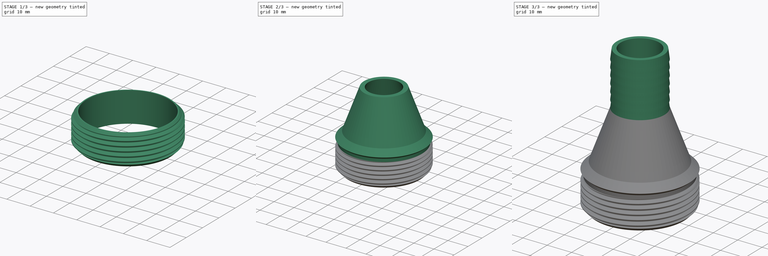
[diagram: build sequence overview — one tinted view per stage of 3, left to right]
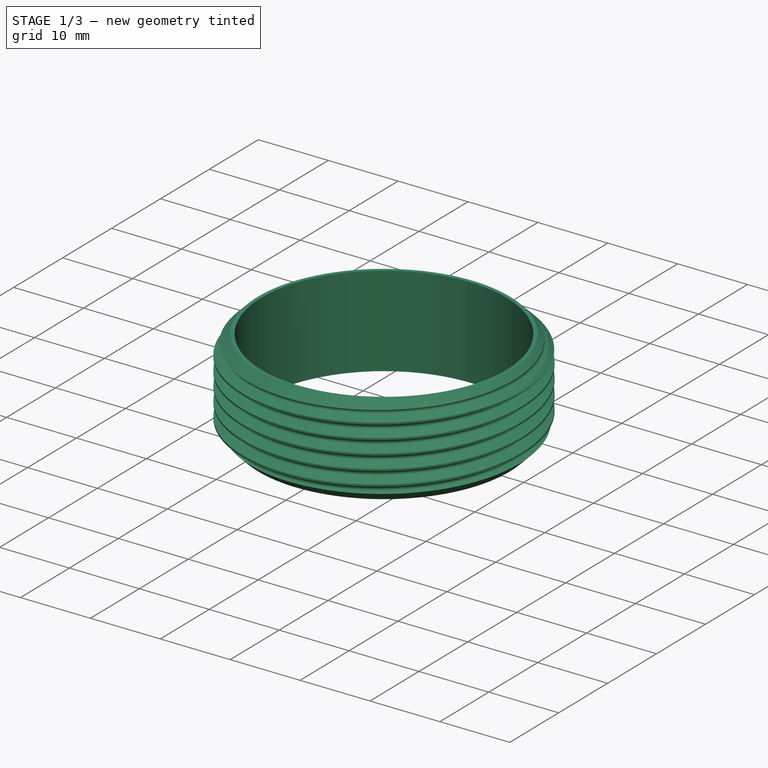
[diagram: stage 1 of 3 — iso view after this stage's code; geometry added in this stage tinted green]
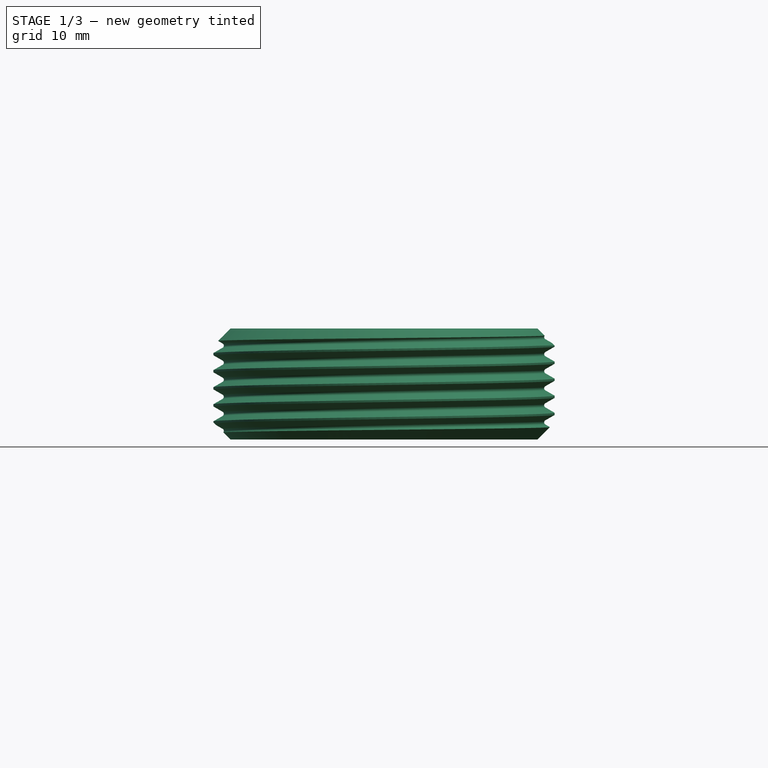
[diagram: stage 1 of 3 — front view after this stage's code; geometry added in this stage tinted green]
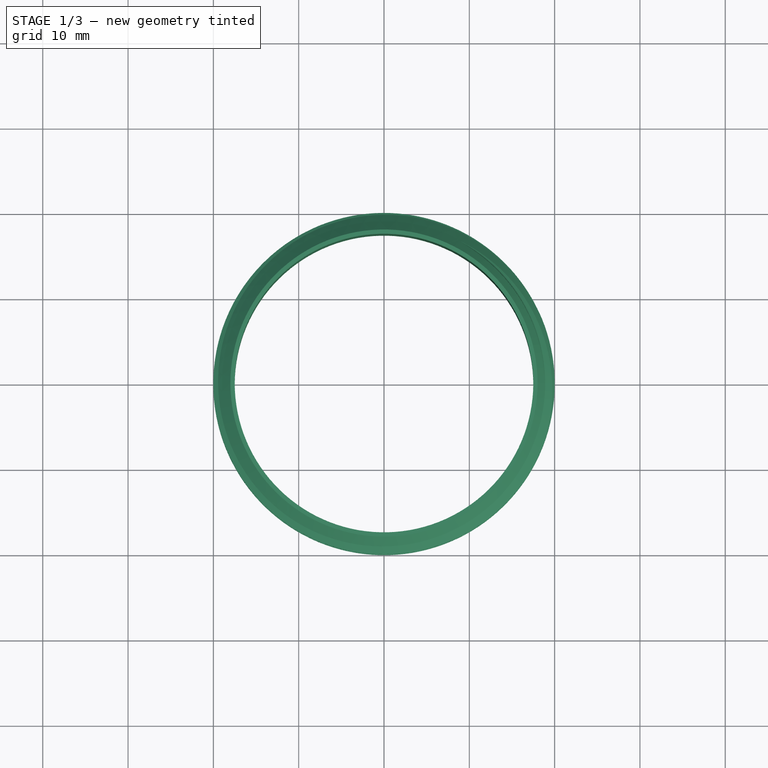
[diagram: stage 1 of 3 — top view after this stage's code; geometry added in this stage tinted green]
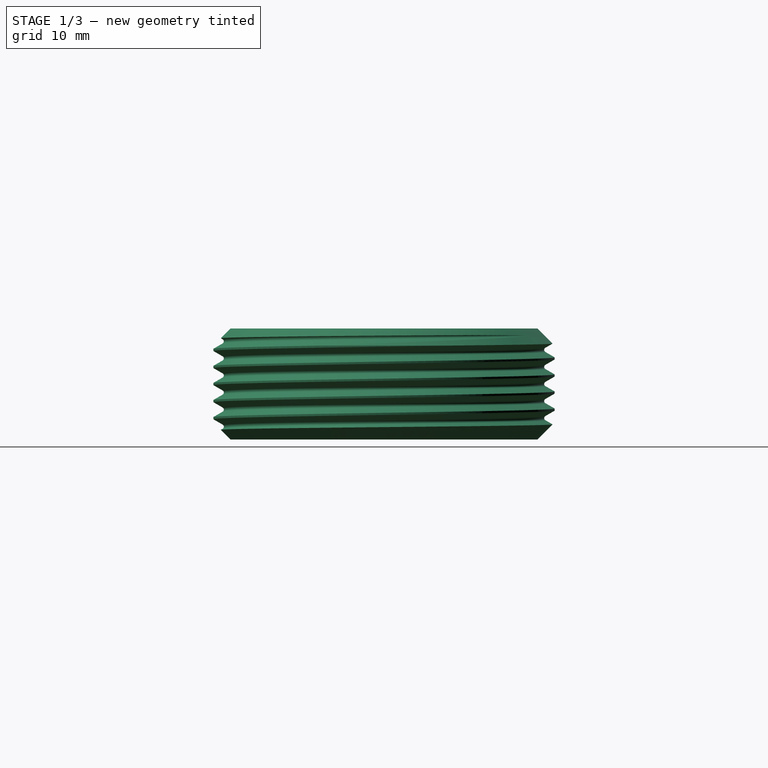
[diagram: stage 1 of 3 — right view after this stage's code; geometry added in this stage tinted green]
FCSTD DOCUMENT  (FreeCAD 1.0R39285 (Git))
Label: Переходник для насоса
License: All rights reserved
LicenseURL: https://en.wikipedia.org/wiki/All_rights_reserved
objects: Sketcher::SketchObject×3, PartDesign::Revolution×3, Part::FeaturePython×1, PartDesign::LinearPattern×1, PartDesign::Body×1, Part::Cylinder×1, Part::Cut×1, Part::MultiFuse×1
note: 22 computed .brp shape members not serialized (recipe doc carries the construction recipe); baked Part::Feature solids carry a one-line shape summary decoded from their .brp

FEATURE [Part::FeaturePython] ThreadedRod  label="40x13-Шпилька"  # WARN: FeaturePython — macro-defined, semantics opaque (R4)
  Diameter = 29
  DiameterCustom = 40
  Invert = false
  LeftHanded = false
  Length = 13
  MatchOuter = false
  OffsetAngle = 0
  PitchCustom = 2
  Thread = true
  Type = 4
FEATURE [PartDesign::Body] Body  label="Тело"
  AllowCompound = false
  Group = -> [Sketch,Revolution,Sketch001,Revolution001,Sketch002,Revolution002,LinearPattern]
  Origin = -> Origin
  Tip = -> LinearPattern
FEATURE [Part::Cylinder] Cylinder  label="Цилиндр"
  Angle = 360
  AttacherType = Attacher::AttachEngine3D
  FirstAngle = 0
  Height = 50
  Placement = pos=(0,0,-26) rot=(0,0,1;0rad)
  Radius = 17.5
  SecondAngle = 0
FEATURE [Part::Cut] Cut
  Base = -> ThreadedRod
  Refine = true
  Tool = -> Cylinder
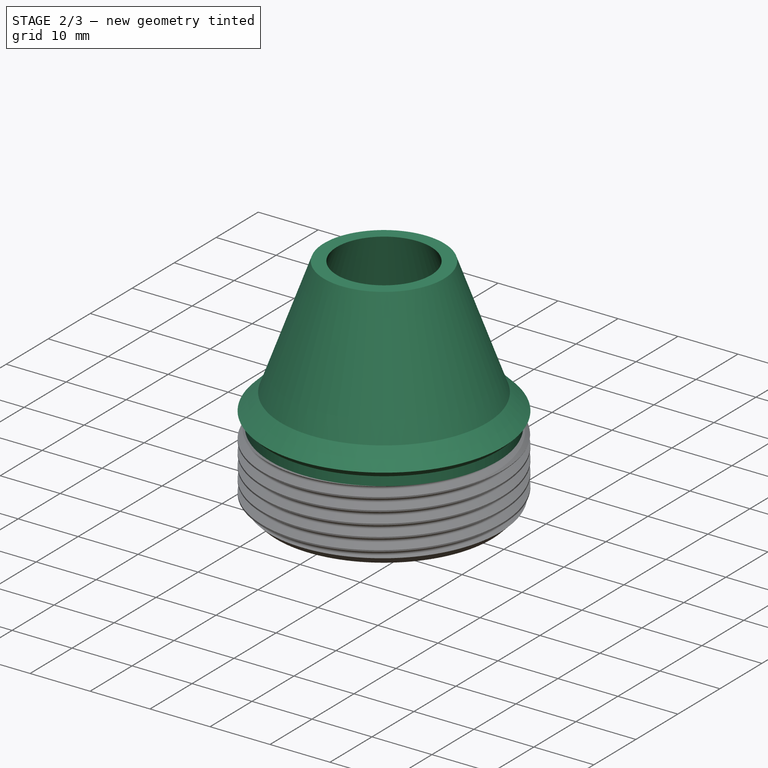
[diagram: stage 2 of 3 — iso view after this stage's code; geometry added in this stage tinted green]
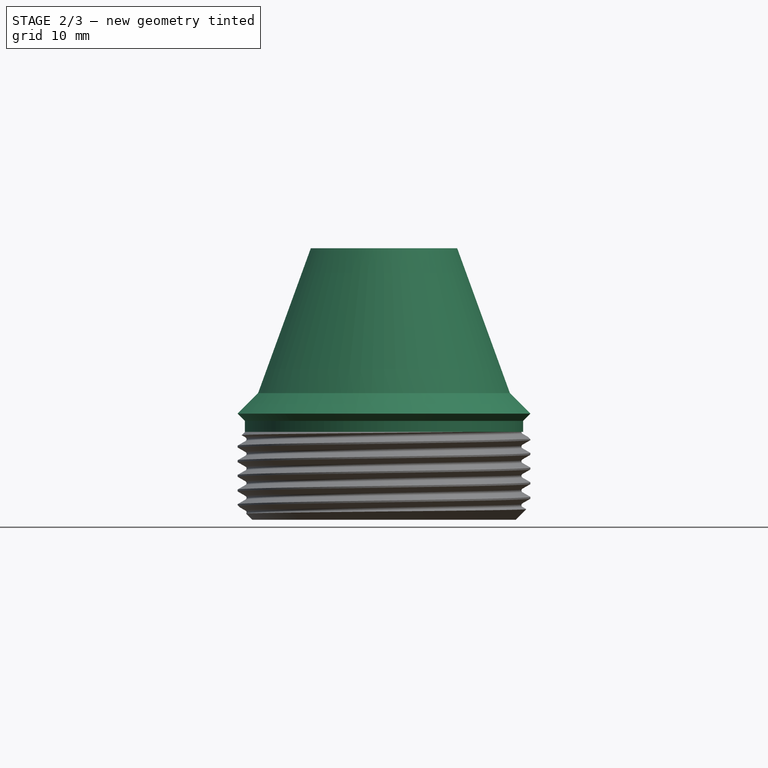
[diagram: stage 2 of 3 — front view after this stage's code; geometry added in this stage tinted green]
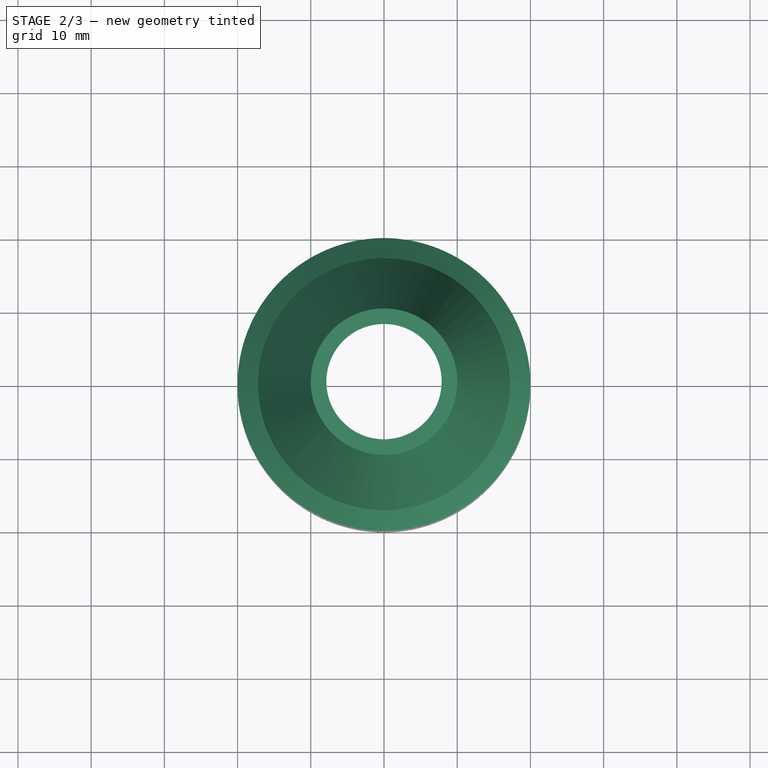
[diagram: stage 2 of 3 — top view after this stage's code; geometry added in this stage tinted green]
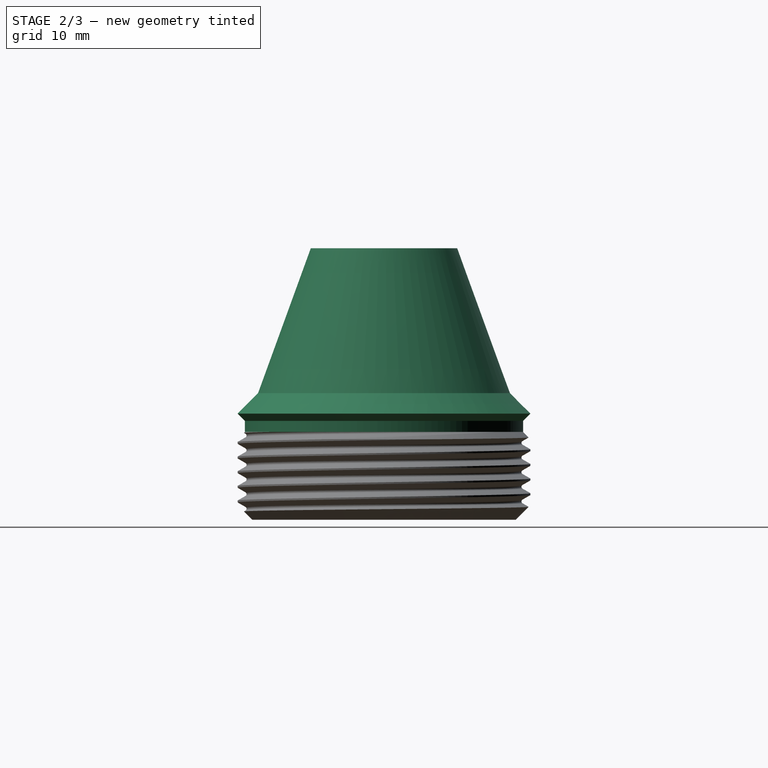
[diagram: stage 2 of 3 — right view after this stage's code; geometry added in this stage tinted green]
FEATURE [Sketcher::SketchObject] Sketch
  ArcFitTolerance = 1e-06
  AttachmentSupport = -> [XZ_Plane]
  FullyConstrained = true
  MakeInternals = false
  MapMode = 5
  Placement = pos=(0,0,0) rot=(1,0,0;1.5708rad)
  sketch-geometry (13):
    g0: LineSegment [constr] StartX=0 StartY=0 StartZ=0 EndX=0 EndY=-2 EndZ=0
    g1: LineSegment [constr] StartX=0 StartY=-2 StartZ=0 EndX=20 EndY=-2 EndZ=0
    g2: LineSegment [constr] StartX=20 StartY=-2 StartZ=0 EndX=18 EndY=0 EndZ=0
    g3: LineSegment [constr] StartX=18 StartY=0 StartZ=0 EndX=0 EndY=0 EndZ=0
    g4: LineSegment StartX=19 StartY=0.5 StartZ=0 EndX=19 EndY=-1 EndZ=0
    g5: LineSegment [constr] StartX=19 StartY=-1 StartZ=0 EndX=0 EndY=-1 EndZ=0
    g6: LineSegment [constr] StartX=0 StartY=-1 StartZ=0 EndX=0 EndY=0 EndZ=0
    g7: LineSegment StartX=19 StartY=0.5 StartZ=0 EndX=20 EndY=1.5 EndZ=0
    g8: LineSegment [constr] StartX=20 StartY=1.5 StartZ=0 EndX=0 EndY=1.5 EndZ=0
    g9: LineSegment [constr] StartX=0 StartY=1.5 StartZ=0 EndX=0 EndY=0 EndZ=0
    g10: LineSegment StartX=17 StartY=1.5 StartZ=0 EndX=17 EndY=-1 EndZ=0
    g11: LineSegment StartX=19 StartY=-1 StartZ=0 EndX=17 EndY=-1 EndZ=0
    g12: LineSegment StartX=20 StartY=1.5 StartZ=0 EndX=17 EndY=1.5 EndZ=0
  constraints (35):
    c: Coincident(g-1,g0)
    c: Coincident(g0,g1)
    c: Horizontal(g1)
    c: Coincident(g1,g2)
    c: Coincident(g2,g3)
    c: Coincident(g3,g0)
    c: DistanceY(g0,g0) = 2
    c: Angle(g2,g1) = 0.785398
    c: DistanceX(g1,g1) = 20
    c: PointOnObject(g4,g2)
    c: Coincident(g4,g5)
    c: Symmetric(g0,g0,g5)
    c: Horizontal(g5)
    c: Coincident(g5,g6)
    c: Coincident(g6,g0)
    c: Vertical(g4)
    c: Coincident(g4,g7)
    c: Coincident(g7,g8)
    c: Horizontal(g8)
    c: Coincident(g8,g9)
    c: Coincident(g9,g0)
    c: Vertical(g9)
    c: Vertical(g1,g7)
    c: DistanceY(g1,g7) = 3.5
    c: Angle(g4,g7) = 2.35619
    c: Horizontal(g3)
    c: Vertical(g0)
    c: PointOnObject(g10,g8)
    c: PointOnObject(g10,g5)
    c: Vertical(g10)
    c: Coincident(g4,g11)
    c: Coincident(g11,g10)
    c: Coincident(g7,g12)
    c: Coincident(g12,g10)
    c: DistanceX(g-1,g10) = 17
FEATURE [PartDesign::Revolution] Revolution
  Angle = 360
  Angle2 = 60
  Axis = (0,2e-16,1)
  Base = (0,0,0)
  Placement = pos=(0,0,0) rot=(1,0,0;1.5708rad)
  Profile = -> Sketch
  ReferenceAxis = -> Sketch [V_Axis]
  Refine = true
  Reversed = true
  Suppressed = false
  Type = 0
FEATURE [Sketcher::SketchObject] Sketch001
  ArcFitTolerance = 1e-06
  AttachmentSupport = -> [YZ_Plane]
  ExternalGeometry = -> [Revolution]
  FullyConstrained = true
  MakeInternals = false
  MapMode = 5
  Placement = pos=(0,0,0) rot=(0.57735,0.57735,0.57735;2.0944rad)
  sketch-geometry (10):
    g0: LineSegment [constr] StartX=0 StartY=-1 StartZ=0 EndX=-19 EndY=-1 EndZ=0
    g1: LineSegment [constr] StartX=-10 StartY=24.08 StartZ=0 EndX=0 EndY=24.08 EndZ=0
    g2: LineSegment [constr] StartX=0 StartY=24.08 StartZ=0 EndX=0 EndY=-1 EndZ=0
    g3: LineSegment StartX=-19 StartY=-1 StartZ=0 EndX=-17 EndY=-1 EndZ=0
    g4: LineSegment StartX=-17 StartY=-1 StartZ=0 EndX=-7.87164 EndY=24.08 EndZ=0
    g5: LineSegment StartX=-7.87164 StartY=24.08 StartZ=0 EndX=-10 EndY=24.08 EndZ=0
    g6: LineSegment StartX=-20 StartY=1.5 StartZ=0 EndX=-17.1989 EndY=4.30108 EndZ=0
    g7: LineSegment StartX=-20 StartY=1.5 StartZ=0 EndX=-19 EndY=0.5 EndZ=0
    g8: LineSegment StartX=-19 StartY=0.5 StartZ=0 EndX=-19 EndY=-1 EndZ=0
    g9: LineSegment StartX=-17.1989 StartY=4.30108 StartZ=0 EndX=-10 EndY=24.08 EndZ=0
  constraints (28):
    c: PointOnObject(g0,g-2)
    c: Coincident(g0,g-3)
    c: Horizontal(g0)
    c: DistanceX(g9,g0) = 10
    c: Coincident(g9,g1)
    c: PointOnObject(g1,g-2)
    c: Horizontal(g1)
    c: Coincident(g1,g2)
    c: Coincident(g2,g0)
    c: Coincident(g0,g3)
    c: Coincident(g3,g4)
    c: Coincident(g5,g4)
    c: Coincident(g5,g9)
    c: PointOnObject(g4,g1)
    c: PointOnObject(g3,g0)
    c: Coincident(g6,g-4)
    c: PointOnObject(g6,g9)
    c: Angle(g-4,g6) = 0.785398
    c: Coincident(g7,g6)
    c: Coincident(g8,g7)
    c: Coincident(g8,g0)
    c: Vertical(g8)
    c: Angle(g7,g6) = 1.5708
    c: PointOnObject(g9,g6)
    c: Parallel(g4,g9)
    c: Angle(g0,g4) = 1.22173
    c: Distance(g9,g4) = 2
    c: DistanceX(g3,g-1) = 17
FEATURE [PartDesign::Revolution] Revolution001
  Angle = 360
  Angle2 = 60
  Axis = (0,0,1)
  Base = (0,0,0)
  BaseFeature = -> Revolution
  Placement = pos=(0,0,0) rot=(1,0,0;1.5708rad)
  Profile = -> Sketch001
  ReferenceAxis = -> Sketch001 [V_Axis]
  Refine = true
  Suppressed = false
  Type = 0
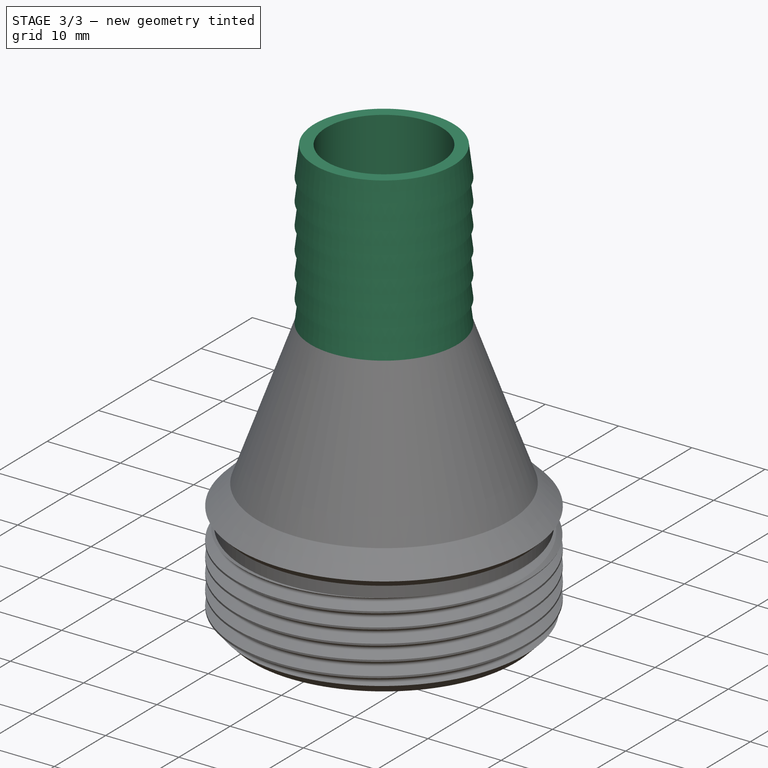
[diagram: stage 3 of 3 — iso view after this stage's code; geometry added in this stage tinted green]
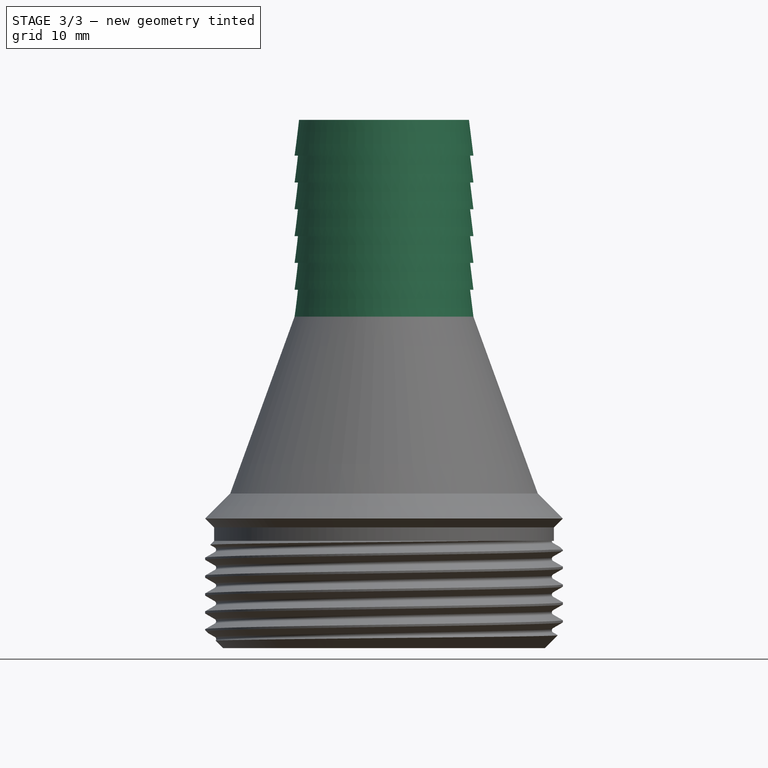
[diagram: stage 3 of 3 — front view after this stage's code; geometry added in this stage tinted green]
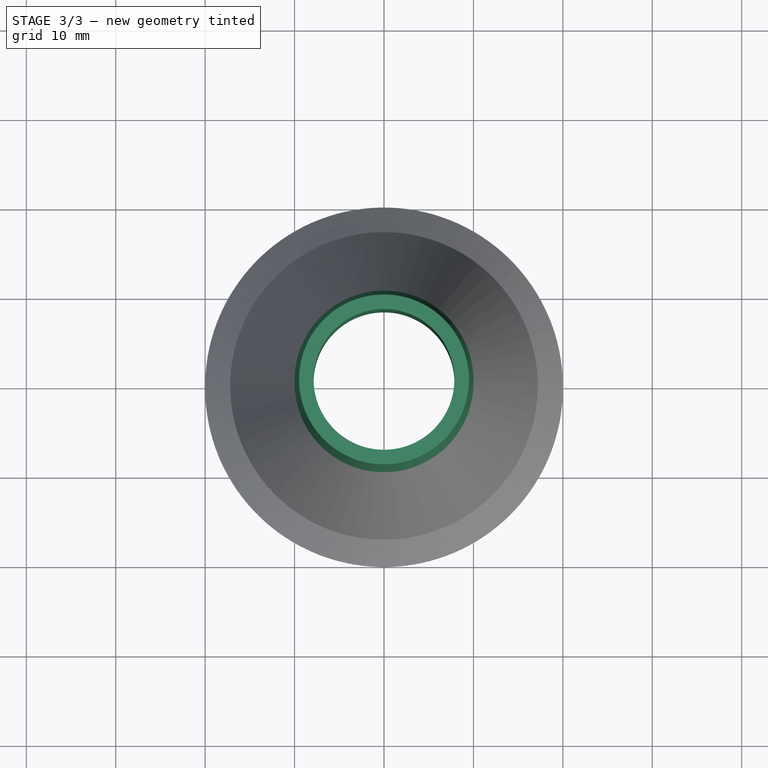
[diagram: stage 3 of 3 — top view after this stage's code; geometry added in this stage tinted green]
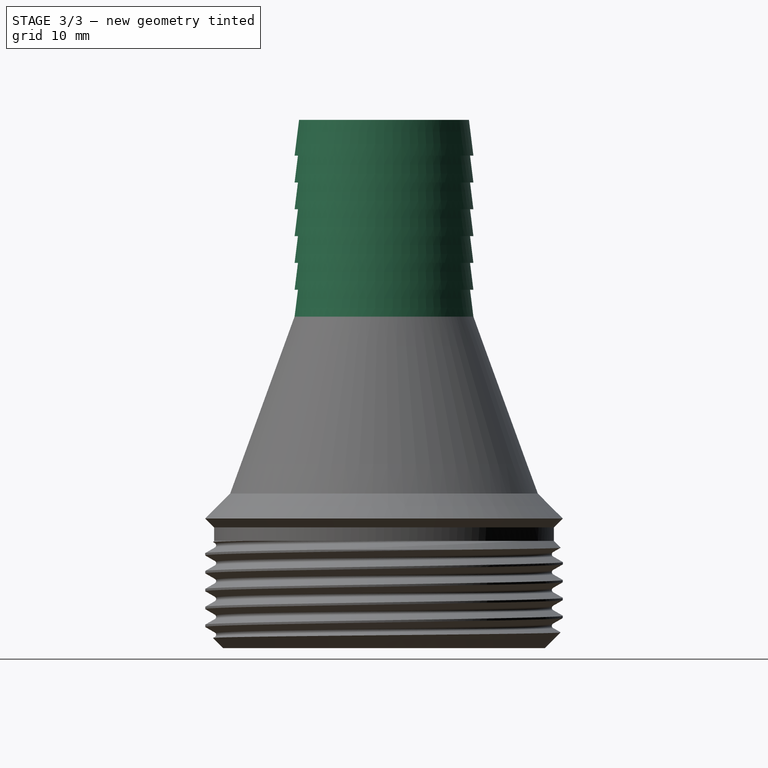
[diagram: stage 3 of 3 — right view after this stage's code; geometry added in this stage tinted green]
FEATURE [Sketcher::SketchObject] Sketch002
  ArcFitTolerance = 1e-06
  AttachmentSupport = -> [XZ_Plane]
  ExternalGeometry = -> [Revolution001]
  FullyConstrained = true
  MakeInternals = false
  MapMode = 5
  Placement = pos=(0,0,0) rot=(1,0,0;1.5708rad)
  sketch-geometry (4):
    g0: LineSegment StartX=7.87164 StartY=24.08 StartZ=0 EndX=7.87164 EndY=28.08 EndZ=0
    g1: LineSegment StartX=7.87164 StartY=28.08 StartZ=0 EndX=9.5 EndY=28.08 EndZ=0
    g2: LineSegment StartX=9.5 StartY=28.08 StartZ=0 EndX=10 EndY=24.08 EndZ=0
    g3: LineSegment StartX=10 StartY=24.08 StartZ=0 EndX=7.87164 EndY=24.08 EndZ=0
  constraints (10):
    c: Coincident(g-3,g0)
    c: Vertical(g0)
    c: Coincident(g0,g1)
    c: Coincident(g1,g2)
    c: Coincident(g2,g-4)
    c: Horizontal(g1)
    c: DistanceX(g-1,g1) = 9.5
    c: DistanceY(g2,g2) = 4
    c: Coincident(g3,g2)
    c: Coincident(g3,g0)
FEATURE [PartDesign::Revolution] Revolution002
  Angle = 360
  Angle2 = 60
  Axis = (0,2e-16,1)
  Base = (0,0,0)
  BaseFeature = -> Revolution001
  Placement = pos=(0,0,0) rot=(1,0,0;1.5708rad)
  Profile = -> Sketch002
  ReferenceAxis = -> Sketch002 [V_Axis]
  Refine = true
  Reversed = true
  Suppressed = false
  Type = 0
FEATURE [PartDesign::LinearPattern] LinearPattern
  BaseFeature = -> Revolution002
  Direction = -> Z_Axis
  Length = 18
  Mode = 1
  Occurrences = 7
  Offset = 3
  Originals = -> [Revolution002]
  Placement = pos=(0,0,0) rot=(1,0,0;1.5708rad)
  Refine = true
  Suppressed = false
  TransformMode = 0
FEATURE [Part::MultiFuse] Fusion
  Refine = true
  Shapes = -> [Body,Cut]
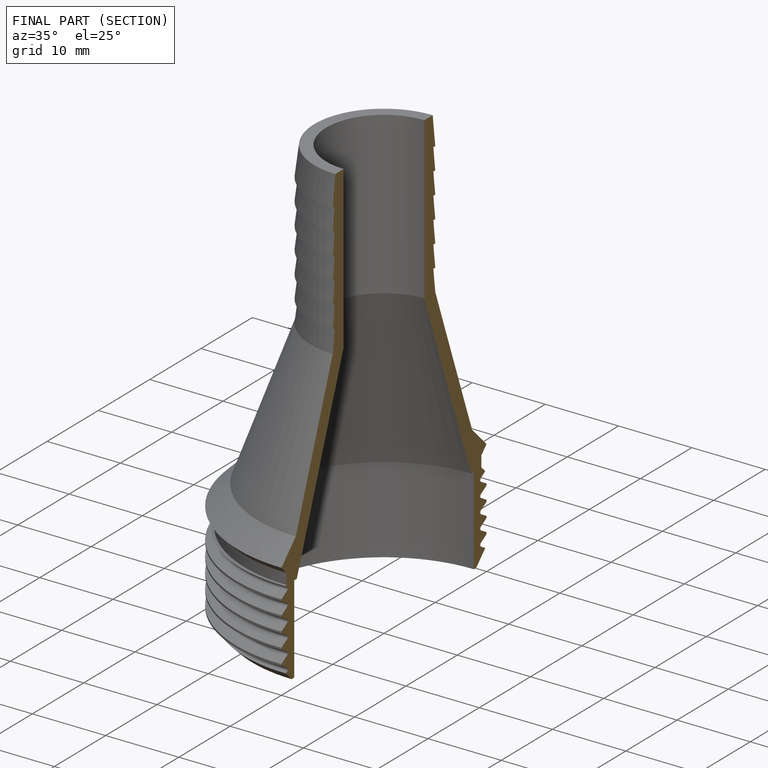
[diagram: finished part — half-section view (interior)]
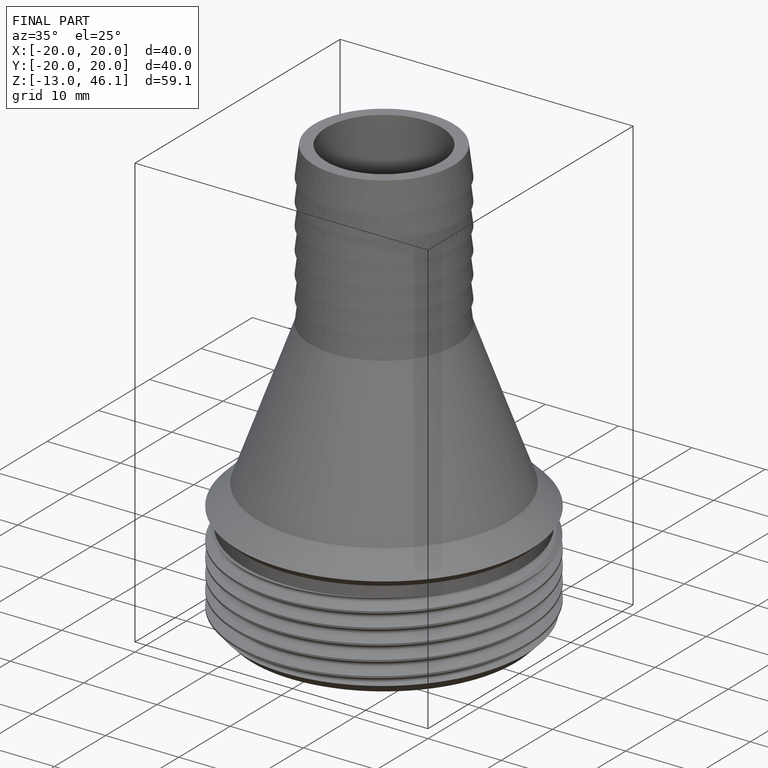
[diagram: finished part — iso view with bounding-box wireframe]
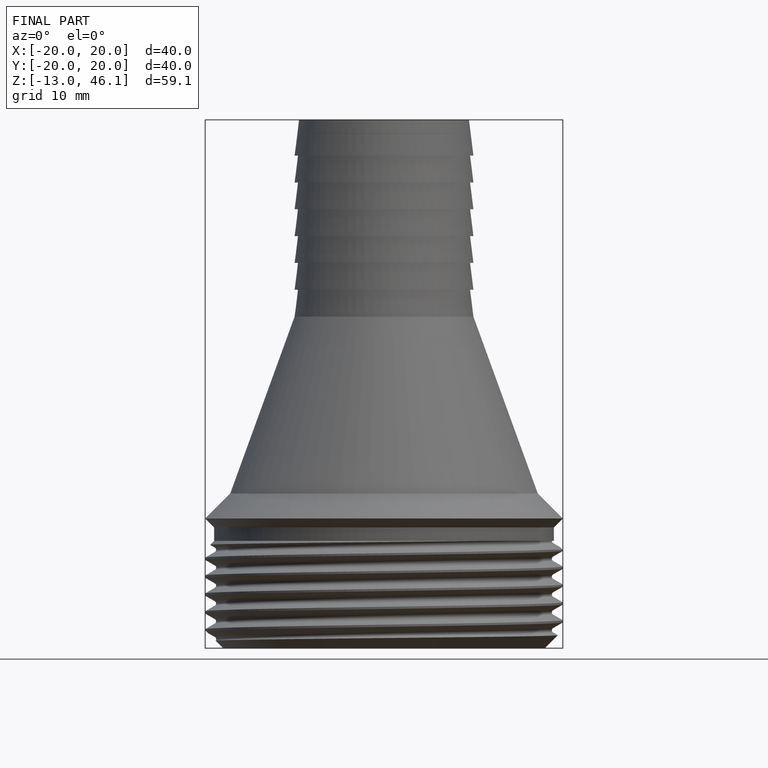
[diagram: finished part — front view with bounding-box wireframe]
